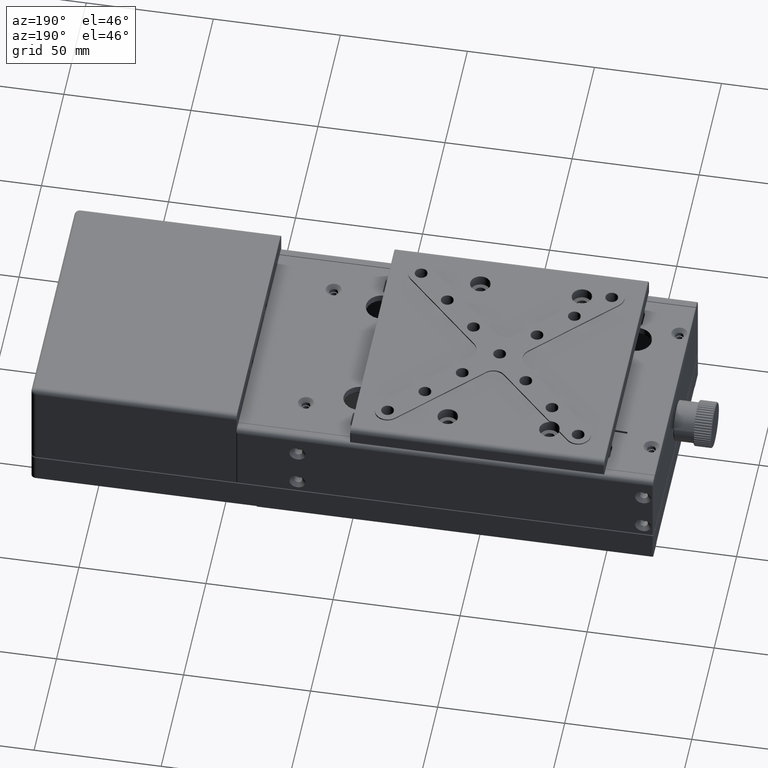
[diagram: clean part render]
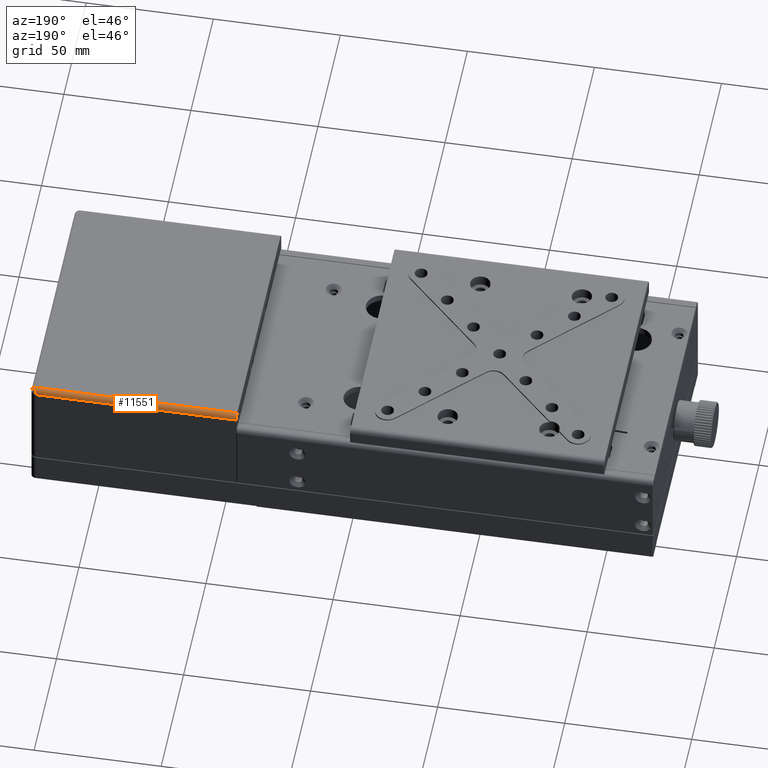
[diagram: same view with one face highlighted and labeled with its STEP entity id]
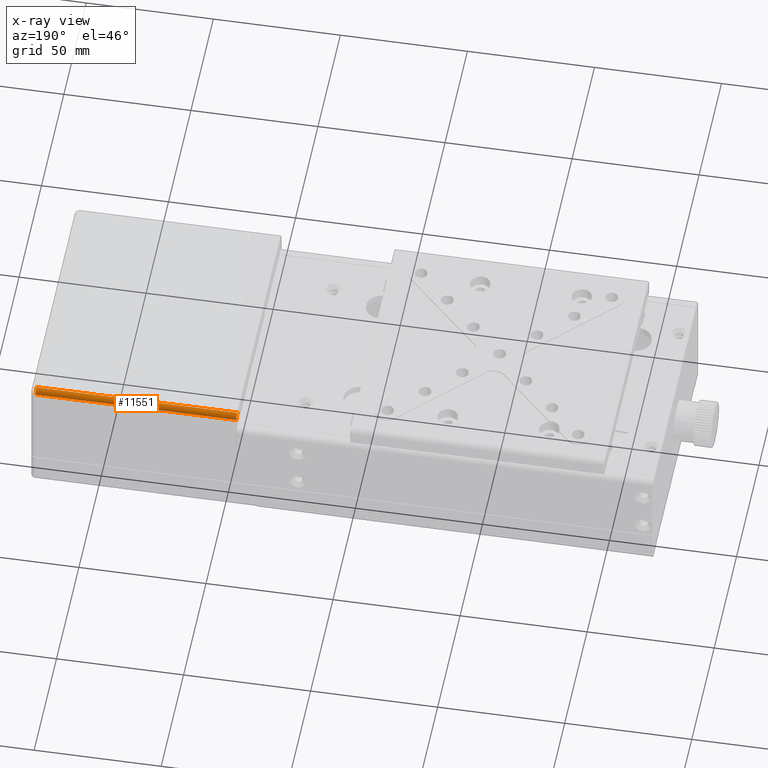
[diagram: x-ray of the same camera — body ghosted, the highlighted face saturated]
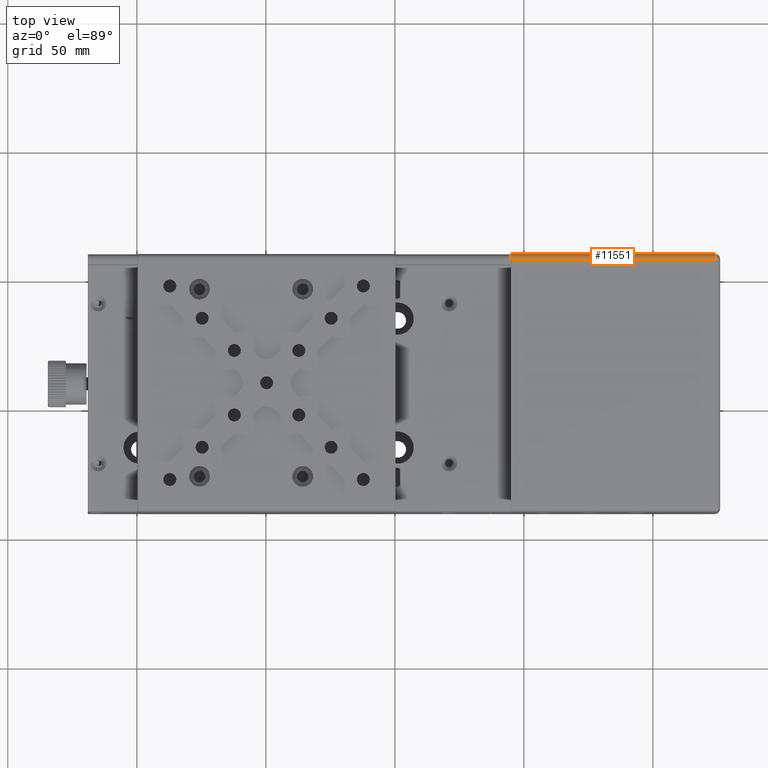
[diagram: same view with one face highlighted and labeled with its STEP entity id]
A machine part, auxiliary view. The second image highlights one B-rep face of the part: STEP entity #11551.
The next image is the same camera in x-ray: the body ghosted, the highlighted face saturated — about 0% of this face is hidden behind the body in this view.
A second angle (top view) of the same face is appended — the face is thin or edge-on in the first view.
In plain terms, the highlighted cylindrical surface (edge-blend (fillet) strip) has radius 2 mm, axis along (1, 0, 0).
Its self-contained STEP definition (entity closure, byte-faithful):
#4458 = EDGE_CURVE ( 'NONE', #44689, #21912, #63312, .T. ) ;
#6309 = DIRECTION ( 'NONE',  ( 0.000000000000000000, -1.000000000000000000, 0.000000000000000000 ) ) ;
#11551 = ADVANCED_FACE ( 'NONE', ( #50235 ), #61937, .T. ) ;
#11731 = ORIENTED_EDGE ( 'NONE', *, *, #4458, .F. ) ;
#12326 = AXIS2_PLACEMENT_3D ( 'NONE', #56443, #27583, #6309 ) ;
#13300 = EDGE_CURVE ( 'NONE', #21912, #16225, #35578, .T. ) ;
#13930 = ORIENTED_EDGE ( 'NONE', *, *, #39790, .F. ) ;
#13947 = CARTESIAN_POINT ( 'NONE',  ( 74.03920879970989688, 59.99424858742450084, 42.00000000000000000 ) ) ;
#16225 = VERTEX_POINT ( 'NONE', #21515 ) ;
#19410 = CARTESIAN_POINT ( 'NONE',  ( 76.03920879970989688, 59.99424858742450084, 42.00000000000000000 ) ) ;
#21515 = CARTESIAN_POINT ( 'NONE',  ( 74.03920879970989688, 57.99424858742449373, 44.00000000000000000 ) ) ;
#21912 = VERTEX_POINT ( 'NONE', #13947 ) ;
#23077 = CARTESIAN_POINT ( 'NONE',  ( 74.03920879970989688, 57.99424858742449373, 42.00000000000000000 ) ) ;
#23147 = CARTESIAN_POINT ( 'NONE',  ( 76.03920879970989688, 57.99424858742449373, 44.00000000000000000 ) ) ;
#24401 = CIRCLE ( 'NONE', #53555, 2.000000000000001776 ) ;
#27583 = DIRECTION ( 'NONE',  ( 1.000000000000000000, 0.000000000000000000, 1.026095422780649923E-16 ) ) ;
#35578 = CIRCLE ( 'NONE', #40268, 2.000000000000001776 ) ;
#37125 = VECTOR ( 'NONE', #40308, 1000.000000000000000 ) ;
#39790 = EDGE_CURVE ( 'NONE', #40098, #44689, #24401, .T. ) ;
#40098 = VERTEX_POINT ( 'NONE', #58152 ) ;
#40268 = AXIS2_PLACEMENT_3D ( 'NONE', #23077, #45366, #47097 ) ;
#40308 = DIRECTION ( 'NONE',  ( -1.000000000000000000, 3.089426096435059871E-16, -1.026095422780651895E-16 ) ) ;
#43913 = CARTESIAN_POINT ( 'NONE',  ( -4.960791200290180392, 57.99424858742449373, 42.00000000000000000 ) ) ;
#44689 = VERTEX_POINT ( 'NONE', #45616 ) ;
#45366 = DIRECTION ( 'NONE',  ( 1.000000000000000000, 0.000000000000000000, 1.026095422780649923E-16 ) ) ;
#45616 = CARTESIAN_POINT ( 'NONE',  ( -4.960791200290180392, 59.99424858742450084, 42.00000000000000000 ) ) ;
#45811 = LINE ( 'NONE', #23147, #37125 ) ;
#47097 = DIRECTION ( 'NONE',  ( 0.000000000000000000, -1.000000000000000000, 0.000000000000000000 ) ) ;
#48318 = DIRECTION ( 'NONE',  ( 0.000000000000000000, 0.000000000000000000, 1.000000000000000000 ) ) ;
#50235 = FACE_OUTER_BOUND ( 'NONE', #66288, .T. ) ;
#53385 = DIRECTION ( 'NONE',  ( 1.000000000000000000, -3.089426096435059871E-16, 1.026095422780651895E-16 ) ) ;
#53555 = AXIS2_PLACEMENT_3D ( 'NONE', #43913, #71007, #48318 ) ;
#55109 = ORIENTED_EDGE ( 'NONE', *, *, #13300, .F. ) ;
#56443 = CARTESIAN_POINT ( 'NONE',  ( 76.03920879970979740, 57.99424858742449373, 42.00000000000000000 ) ) ;
#58152 = CARTESIAN_POINT ( 'NONE',  ( -4.960791200290180392, 57.99424858742449373, 44.00000000000000000 ) ) ;
#61937 = CYLINDRICAL_SURFACE ( 'NONE', #12326, 2.000000000000001776 ) ;
#61939 = VECTOR ( 'NONE', #53385, 1000.000000000000000 ) ;
#63312 = LINE ( 'NONE', #19410, #61939 ) ;
#66288 = EDGE_LOOP ( 'NONE', ( #11731, #13930, #71305, #55109 ) ) ;
#67745 = EDGE_CURVE ( 'NONE', #16225, #40098, #45811, .T. ) ;
#71007 = DIRECTION ( 'NONE',  ( -1.000000000000000000, -4.239379055432829829E-17, 0.000000000000000000 ) ) ;
#71305 = ORIENTED_EDGE ( 'NONE', *, *, #67745, .F. ) ;